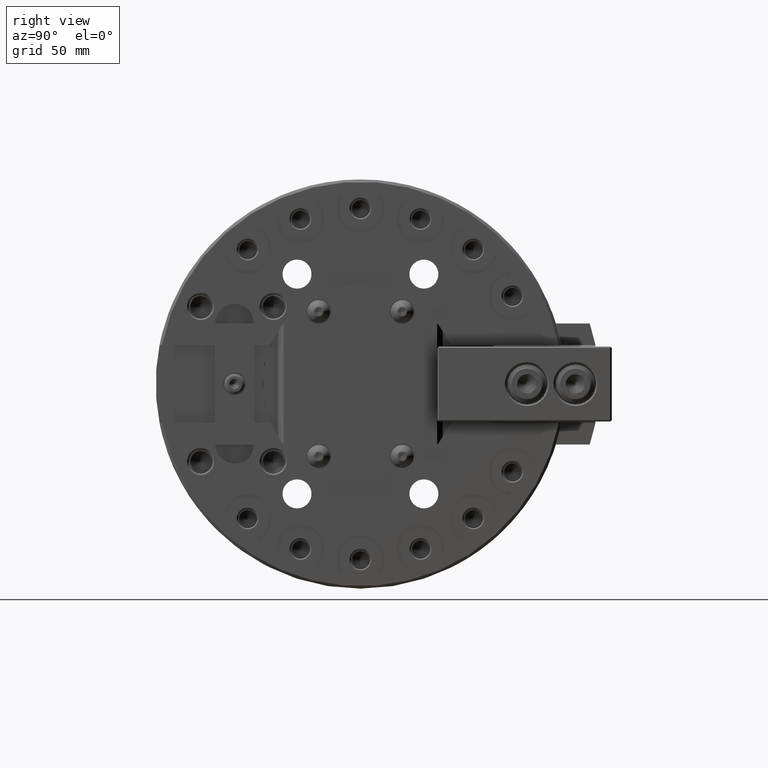
[diagram: clean part render]
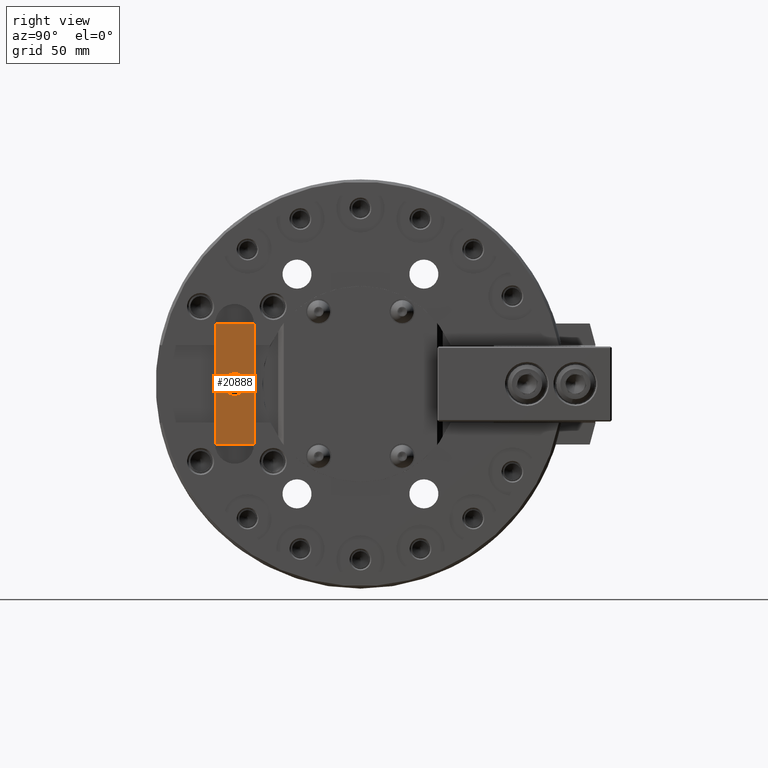
[diagram: same view with one face highlighted and labeled with its STEP entity id]
A machine part, right view. The second image highlights one B-rep face of the part: STEP entity #20888.
In plain terms, the highlighted planar face has unit normal (1, 0, 0).
Its self-contained STEP definition (entity closure, byte-faithful):
#2488=LINE('',#34651,#4605);
#2496=LINE('',#34670,#4613);
#2498=LINE('',#34674,#4615);
#2499=LINE('',#34675,#4616);
#4605=VECTOR('',#28485,1000.);
#4613=VECTOR('',#28499,1000.);
#4615=VECTOR('',#28503,1000.);
#4616=VECTOR('',#28504,1000.);
#10010=ORIENTED_EDGE('',*,*,#12892,.T.);
#10011=ORIENTED_EDGE('',*,*,#12894,.F.);
#10012=ORIENTED_EDGE('',*,*,#12883,.F.);
#10013=ORIENTED_EDGE('',*,*,#12895,.T.);
#10014=ORIENTED_EDGE('',*,*,#12896,.F.);
#12883=EDGE_CURVE('',#14910,#14911,#2488,.T.);
#12892=EDGE_CURVE('',#14918,#14917,#2496,.T.);
#12894=EDGE_CURVE('',#14911,#14917,#2498,.T.);
#12895=EDGE_CURVE('',#14910,#14918,#2499,.T.);
#12896=EDGE_CURVE('',#14919,#14919,#15561,.T.);
#14910=VERTEX_POINT('',#34652);
#14911=VERTEX_POINT('',#34653);
#14917=VERTEX_POINT('',#34669);
#14918=VERTEX_POINT('',#34671);
#14919=VERTEX_POINT('',#34677);
#15561=CIRCLE('',#22884,4.75000000000001);
#17121=EDGE_LOOP('',(#10010,#10011,#10012,#10013));
#17122=EDGE_LOOP('',(#10014));
#18775=FACE_BOUND('',#17121,.T.);
#18776=FACE_BOUND('',#17122,.T.);
#19695=PLANE('',#22883);
#20888=ADVANCED_FACE('',(#18775,#18776),#19695,.T.);
#22883=AXIS2_PLACEMENT_3D('',#34673,#28501,#28502);
#22884=AXIS2_PLACEMENT_3D('',#34676,#28505,#28506);
#28485=DIRECTION('',(0.,0.,1.));
#28499=DIRECTION('',(0.,0.,1.));
#28501=DIRECTION('',(1.,0.,0.));
#28502=DIRECTION('',(0.,0.,-1.));
#28503=DIRECTION('',(0.,1.,0.));
#28504=DIRECTION('',(0.,1.,0.));
#28505=DIRECTION('',(1.,0.,0.));
#28506=DIRECTION('',(0.,0.,-1.));
#34651=CARTESIAN_POINT('',(0.,-60.,-25.));
#34652=CARTESIAN_POINT('',(0.,-60.,-25.));
#34653=CARTESIAN_POINT('',(0.,-60.,25.));
#34669=CARTESIAN_POINT('',(0.,-44.,25.));
#34670=CARTESIAN_POINT('',(0.,-44.,-25.));
#34671=CARTESIAN_POINT('',(0.,-44.,-25.));
#34673=CARTESIAN_POINT('',(0.,-60.,-25.));
#34674=CARTESIAN_POINT('',(0.,-60.,25.));
#34675=CARTESIAN_POINT('',(0.,-60.,-25.));
#34676=CARTESIAN_POINT('',(1.86752468957912E-15,-52.,0.));
#34677=CARTESIAN_POINT('',(1.86752468957912E-15,-52.,-4.75000000000001));